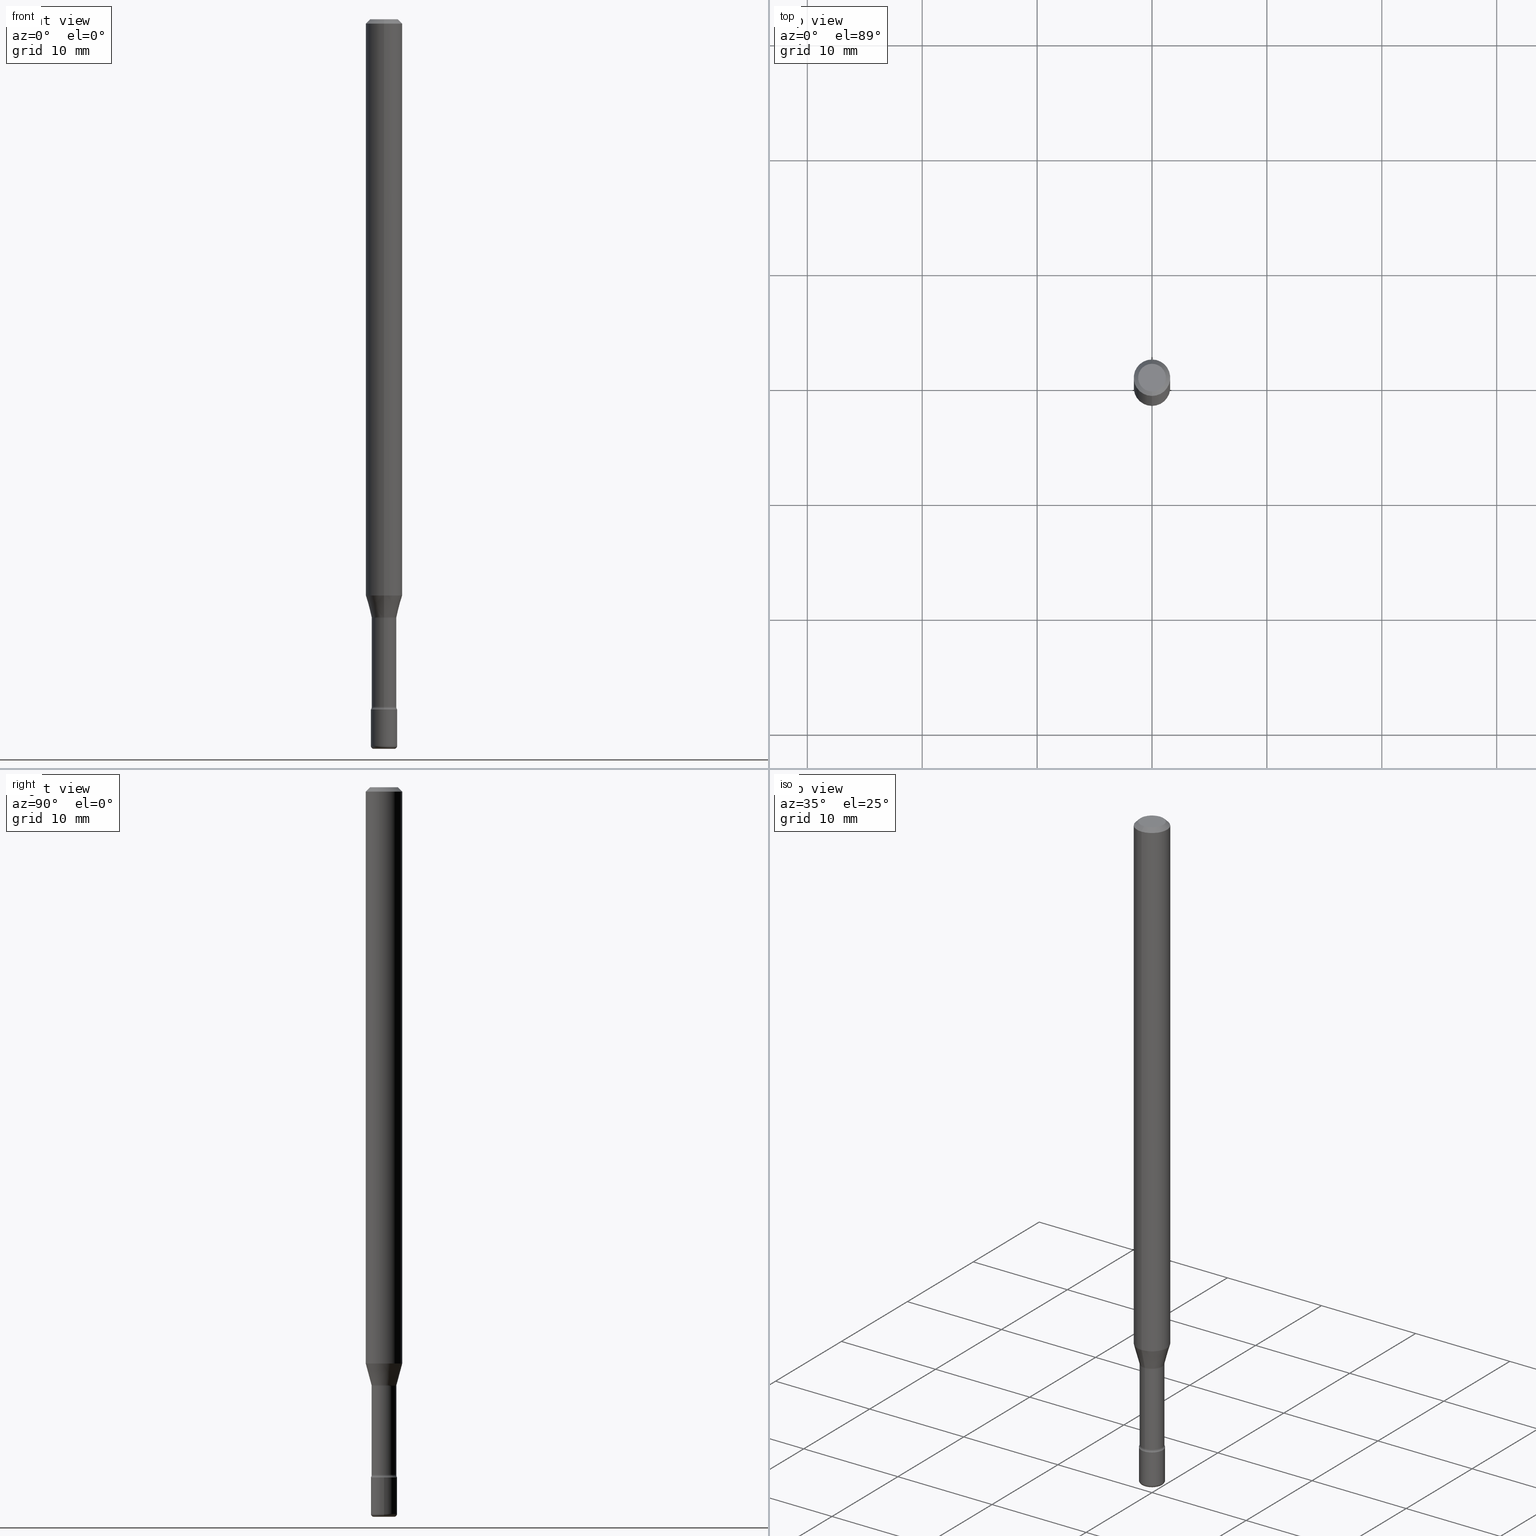
[diagram: canonical four-view strip — front | top / right | iso, engineering-drawing reading convention]
A machine part, canonical four-view strip (front | top / right | iso — engineering-drawing reading convention). The complete STEP part file that produces these views, byte-faithful:
ISO-10303-21;
HEADER;
FILE_DESCRIPTION (( 'STEP AP203' ),
    '1' );
FILE_NAME ('08953.STEP',
    '2024-03-06T20:12:15',
    ( '' ),
    ( '' ),
    'SwSTEP 2.0',
    'SolidWorks 2023',
    '' );
FILE_SCHEMA (( 'CONFIG_CONTROL_DESIGN' ));
ENDSEC;

DATA;
#1 = AXIS2_PLACEMENT_3D ( 'NONE', #12, #15, #185 ) ;
#2 = AXIS2_PLACEMENT_3D ( 'NONE', #472, #517, #420 ) ;
#3 = ORIENTED_EDGE ( 'NONE', *, *, #67, .T. ) ;
#4 = APPLICATION_PROTOCOL_DEFINITION ( 'international standard', 'config_control_design', 1994, #330 ) ;
#5 = DIRECTION ( 'NONE',  ( 6.982962677686265922E-15, 1.000000000000000000, -3.483106191921935554E-15 ) ) ;
#6 = EDGE_CURVE ( 'NONE', #409, #531, #223, .T. ) ;
#7 = FACE_OUTER_BOUND ( 'NONE', #508, .T. ) ;
#8 = DIRECTION ( 'NONE',  ( -2.445355446703953584E-29, 3.491643676072220337E-15, 1.000000000000000000 ) ) ;
#9 = AXIS2_PLACEMENT_3D ( 'NONE', #540, #96, #5 ) ;
#10 = CIRCLE ( 'NONE', #132, 0.04749999999999998668 ) ;
#11 = ADVANCED_FACE ( 'NONE', ( #7 ), #492, .T. ) ;
#12 = CARTESIAN_POINT ( 'NONE',  ( 5.783533726627847872E-29, -8.257353366364040046E-15, -2.365000000000000213 ) ) ;
#13 = DIRECTION ( 'NONE',  ( -6.982962677686265922E-15, -1.000000000000000000, 3.491643676072219943E-15 ) ) ;
#14 = CARTESIAN_POINT ( 'NONE',  ( 3.041912507176719677E-16, 0.04281111260565682169, -2.048092501787273534 ) ) ;
#15 = DIRECTION ( 'NONE',  ( -2.438088387897960049E-29, 3.491481338843145188E-15, 1.000000000000000000 ) ) ;
#16 = FACE_OUTER_BOUND ( 'NONE', #100, .T. ) ;
#17 = ORIENTED_EDGE ( 'NONE', *, *, #67, .F. ) ;
#18 = ORIENTED_EDGE ( 'NONE', *, *, #289, .T. ) ;
#19 = EDGE_LOOP ( 'NONE', ( #417, #306, #169, #86 ) ) ;
#20 = VECTOR ( 'NONE', #346, 39.37007874015748143 ) ;
#21 = DIRECTION ( 'NONE',  ( -6.982962677686268288E-15, -1.000000000000000000, 0.000000000000000000 ) ) ;
#22 = CYLINDRICAL_SURFACE ( 'NONE', #56, 0.06250000000000000000 ) ;
#23 = EDGE_LOOP ( 'NONE', ( #191, #433, #94, #556 ) ) ;
#24 = DIRECTION ( 'NONE',  ( -6.982962677686266711E-15, -1.000000000000000000, 6.381165607227959654E-15 ) ) ;
#25 = DIRECTION ( 'NONE',  ( -2.445355446703953584E-29, 3.491643676072220337E-15, 1.000000000000000000 ) ) ;
#26 = CARTESIAN_POINT ( 'NONE',  ( 5.008314154599036153E-29, -7.151209231876466431E-15, -2.048092501787273534 ) ) ;
#27 = ADVANCED_FACE ( 'NONE', ( #398 ), #226, .T. ) ;
#28 = FACE_OUTER_BOUND ( 'NONE', #334, .T. ) ;
#29 = DIRECTION ( 'NONE',  ( -2.445355446703953584E-29, 3.491643676072220337E-15, 1.000000000000000000 ) ) ;
#30 = FACE_OUTER_BOUND ( 'NONE', #381, .T. ) ;
#31 = ORIENTED_EDGE ( 'NONE', *, *, #50, .F. ) ;
#32 = APPROVAL_PERSON_ORGANIZATION ( #565, #82, #516 ) ;
#33 = FACE_OUTER_BOUND ( 'NONE', #231, .T. ) ;
#34 = CIRCLE ( 'NONE', #171, 0.04499999999999999833 ) ;
#35 = AXIS2_PLACEMENT_3D ( 'NONE', #376, #506, #291 ) ;
#36 = CARTESIAN_POINT ( 'NONE',  ( 5.008314154599036153E-29, -7.151209231876466431E-15, -2.048092501787273534 ) ) ;
#37 = DIRECTION ( 'NONE',  ( 1.000000000000000000, -6.982962677686269077E-15, 0.000000000000000000 ) ) ;
#38 = CARTESIAN_POINT ( 'NONE',  ( -0.03499999999999999639, -8.445098576203397219E-15, -2.489999999999999769 ) ) ;
#39 = ADVANCED_FACE ( 'NONE', ( #315 ), #512, .F. ) ;
#40 = VECTOR ( 'NONE', #274, 39.37007874015748143 ) ;
#41 = SECURITY_CLASSIFICATION_LEVEL ( 'unclassified' ) ;
#42 = ORIENTED_EDGE ( 'NONE', *, *, #233, .F. ) ;
#43 = COORDINATED_UNIVERSAL_TIME_OFFSET ( 5, 0, .BEHIND. ) ;
#44 = ORIENTED_EDGE ( 'NONE', *, *, #428, .F. ) ;
#45 = AXIS2_PLACEMENT_3D ( 'NONE', #319, #457, #270 ) ;
#46 = VERTEX_POINT ( 'NONE', #526 ) ;
#47 = CLOSED_SHELL ( 'NONE', ( #473, #278, #27, #83, #481, #91 ) ) ;
#48 = EDGE_CURVE ( 'NONE', #352, #113, #236, .T. ) ;
#49 = CARTESIAN_POINT ( 'NONE',  ( 0.03499999999999999639, -8.938192227438451682E-15, -2.489999999999999769 ) ) ;
#50 = EDGE_CURVE ( 'NONE', #448, #266, #225, .T. ) ;
#51 = ORIENTED_EDGE ( 'NONE', *, *, #48, .T. ) ;
#52 = VERTEX_POINT ( 'NONE', #263 ) ;
#53 = AXIS2_PLACEMENT_3D ( 'NONE', #280, #101, #501 ) ;
#54 = ORIENTED_EDGE ( 'NONE', *, *, #570, .F. ) ;
#55 = DIRECTION ( 'NONE',  ( 1.000000000000000000, -7.105427357601001070E-15, 4.926317496599761806E-29 ) ) ;
#56 = AXIS2_PLACEMENT_3D ( 'NONE', #186, #313, #497 ) ;
#57 = DIRECTION ( 'NONE',  ( 1.000000000000000000, -6.982962677686278543E-15, 0.000000000000000000 ) ) ;
#58 = CYLINDRICAL_SURFACE ( 'NONE', #53, 0.04229999999999999732 ) ;
#59 = EDGE_CURVE ( 'NONE', #426, #404, #34, .T. ) ;
#60 = VERTEX_POINT ( 'NONE', #469 ) ;
#61 = CARTESIAN_POINT ( 'NONE',  ( -4.364351673553916201E-16, -0.06250000000000000000, 6.963011286457598096E-16 ) ) ;
#62 = DIRECTION ( 'NONE',  ( -6.982962677686265922E-15, -1.000000000000000000, 3.483106191921935554E-15 ) ) ;
#63 = FACE_OUTER_BOUND ( 'NONE', #402, .T. ) ;
#64 = SECURITY_CLASSIFICATION ( '', '', #41 ) ;
#65 = VECTOR ( 'NONE', #29, 39.37007874015748143 ) ;
#66 = FACE_OUTER_BOUND ( 'NONE', #502, .T. ) ;
#67 = EDGE_CURVE ( 'NONE', #354, #256, #150, .T. ) ;
#68 = DIRECTION ( 'NONE',  ( -2.445468806185136877E-29, 3.491481338843145188E-15, 1.000000000000000000 ) ) ;
#69 = ORIENTED_EDGE ( 'NONE', *, *, #183, .T. ) ;
#70 = EDGE_CURVE ( 'NONE', #253, #354, #308, .T. ) ;
#71 = DIRECTION ( 'NONE',  ( -2.445355446703953584E-29, 3.491643676072220337E-15, 1.000000000000000000 ) ) ;
#72 = EDGE_LOOP ( 'NONE', ( #439, #201, #260, #17 ) ) ;
#73 = CARTESIAN_POINT ( 'NONE',  ( -2.953793212660789115E-16, -0.04230000000000716520, -2.051974787463811012 ) ) ;
#74 = CIRCLE ( 'NONE', #276, 0.04499999999999999833 ) ;
#75 = CARTESIAN_POINT ( 'NONE',  ( 5.008314154599036153E-29, -7.151209231876466431E-15, -2.048092501787273534 ) ) ;
#76 = EDGE_CURVE ( 'NONE', #46, #198, #331, .T. ) ;
#77 = AXIS2_PLACEMENT_3D ( 'NONE', #323, #510, #211 ) ;
#78 = AXIS2_PLACEMENT_3D ( 'NONE', #399, #200, #368 ) ;
#79 = CARTESIAN_POINT ( 'NONE',  ( 4.440892098500625669E-16, 0.06250000000000000000, 2.598456691367323168E-16 ) ) ;
#80 = SHAPE_DEFINITION_REPRESENTATION ( #546, #128 ) ;
#81 = DIRECTION ( 'NONE',  ( -6.982962677686265133E-15, -1.000000000000000000, 3.491643676072220731E-15 ) ) ;
#82 = APPROVAL ( #345, 'UNSPECIFIED' ) ;
#83 = ADVANCED_FACE ( 'NONE', ( #557 ), #496, .T. ) ;
#84 = PERSON_AND_ORGANIZATION_ROLE ( 'design_owner' ) ;
#85 = PERSON_AND_ORGANIZATION ( #463, #452 ) ;
#86 = ORIENTED_EDGE ( 'NONE', *, *, #215, .F. ) ;
#87 = CIRCLE ( 'NONE', #187, 0.04499999999999999833 ) ;
#88 = CARTESIAN_POINT ( 'NONE',  ( -2.953793212661290535E-16, -0.04229999999999999732, 6.257699263891009512E-16 ) ) ;
#89 = CIRCLE ( 'NONE', #251, 0.04499999999999999833 ) ;
#90 = PERSON_AND_ORGANIZATION_ROLE ( 'design_supplier' ) ;
#91 = ADVANCED_FACE ( 'NONE', ( #335 ), #382, .T. ) ;
#92 = DIRECTION ( 'NONE',  ( 7.105427357601001859E-15, 1.000000000000000000, 0.000000000000000000 ) ) ;
#93 = CALENDAR_DATE ( 2024, 6, 3 ) ;
#94 = ORIENTED_EDGE ( 'NONE', *, *, #48, .F. ) ;
#95 = APPROVAL_PERSON_ORGANIZATION ( #136, #301, #561 ) ;
#96 = DIRECTION ( 'NONE',  ( 2.445355446703953584E-29, -3.491643676072220337E-15, -1.000000000000000000 ) ) ;
#97 = LINE ( 'NONE', #309, #393 ) ;
#98 = CARTESIAN_POINT ( 'NONE',  ( 5.783265631454850293E-29, -8.257737293910801257E-15, -2.365000000000000213 ) ) ;
#99 = LENGTH_MEASURE_WITH_UNIT ( LENGTH_MEASURE( 0.02539999999999999897 ), #514 );
#100 = EDGE_LOOP ( 'NONE', ( #44, #184, #559, #373 ) ) ;
#101 = DIRECTION ( 'NONE',  ( -2.445355446703953584E-29, 3.491643676072220337E-15, 1.000000000000000000 ) ) ;
#102 = EDGE_CURVE ( 'NONE', #266, #113, #551, .T. ) ;
#103 = CC_DESIGN_DATE_AND_TIME_ASSIGNMENT ( #252, #213, ( #523 ) ) ;
#104 = CARTESIAN_POINT ( 'NONE',  ( 6.089217327400989947E-29, -8.693788533719431716E-15, -2.489999999999999769 ) ) ;
#105 = CARTESIAN_POINT ( 'NONE',  ( -4.364351673553912750E-16, -0.06250000000000005551, -0.01499999999999981036 ) ) ;
#106 = CIRCLE ( 'NONE', #262, 0.04749999999999998668 ) ;
#107 = EDGE_CURVE ( 'NONE', #431, #364, #87, .T. ) ;
#108 = EDGE_LOOP ( 'NONE', ( #361, #529 ) ) ;
#109 = LINE ( 'NONE', #491, #518 ) ;
#110 = ORIENTED_EDGE ( 'NONE', *, *, #233, .T. ) ;
#111 = DIRECTION ( 'NONE',  ( -2.445355446703953584E-29, 3.491643676072220337E-15, 1.000000000000000000 ) ) ;
#112 = DIRECTION ( 'NONE',  ( 1.000000000000000000, -6.982962677686245411E-15, 0.000000000000000000 ) ) ;
#113 = VERTEX_POINT ( 'NONE', #166 ) ;
#114 = EDGE_CURVE ( 'NONE', #256, #531, #395, .T. ) ;
#115 = DIRECTION ( 'NONE',  ( -2.445355446703953584E-29, 3.491643676072220337E-15, 1.000000000000000000 ) ) ;
#116 = DIRECTION ( 'NONE',  ( -6.982962677686266711E-15, -1.000000000000000000, 6.458269488567998169E-15 ) ) ;
#117 = ORIENTED_EDGE ( 'NONE', *, *, #107, .T. ) ;
#118 = CLOSED_SHELL ( 'NONE', ( #39, #347, #362, #11, #356, #159, #441, #321, #445, #188, #259, #370, #151, #552 ) ) ;
#119 = CARTESIAN_POINT ( 'NONE',  ( 6.616964112604452341E-46, -9.463647414913262019E-32, -2.708147617875838145E-17 ) ) ;
#120 = DESIGN_CONTEXT ( 'detailed design', #122, 'design' ) ;
#121 = ORIENTED_EDGE ( 'NONE', *, *, #451, .F. ) ;
#122 = APPLICATION_CONTEXT ( 'configuration controlled 3d designs of mechanical parts and assemblies' ) ;
#123 = DIRECTION ( 'NONE',  ( -2.445468806185136597E-29, 3.491481338843145583E-15, 1.000000000000000000 ) ) ;
#124 = FACE_OUTER_BOUND ( 'NONE', #181, .T. ) ;
#125 = CC_DESIGN_PERSON_AND_ORGANIZATION_ASSIGNMENT ( #175, #84, ( #172 ) ) ;
#126 = PERSON_AND_ORGANIZATION ( #463, #452 ) ;
#127 = PERSON_AND_ORGANIZATION ( #463, #452 ) ;
#128 = ADVANCED_BREP_SHAPE_REPRESENTATION ( '08953', ( #547, #174, #401 ), #351 ) ;
#129 = CALENDAR_DATE ( 2024, 6, 3 ) ;
#130 = TOROIDAL_SURFACE ( 'NONE', #2, 0.03499999999999999639, 0.01000000000000008694 ) ;
#131 = APPROVAL_PERSON_ORGANIZATION ( #386, #444, #179 ) ;
#132 = AXIS2_PLACEMENT_3D ( 'NONE', #281, #434, #81 ) ;
#133 = CALENDAR_DATE ( 2024, 6, 3 ) ;
#134 = ORIENTED_EDGE ( 'NONE', *, *, #102, .F. ) ;
#135 = CARTESIAN_POINT ( 'NONE',  ( -0.03499999999999999639, -8.427028846109608002E-15, -2.500000000000000000 ) ) ;
#136 = PERSON_AND_ORGANIZATION ( #463, #452 ) ;
#137 = ORIENTED_EDGE ( 'NONE', *, *, #524, .F. ) ;
#138 =( NAMED_UNIT ( * ) SI_UNIT ( $, .STERADIAN. ) SOLID_ANGLE_UNIT ( ) );
#139 = EDGE_CURVE ( 'NONE', #266, #448, #435, .T. ) ;
#140 = CC_DESIGN_PERSON_AND_ORGANIZATION_ASSIGNMENT ( #85, #90, ( #394 ) ) ;
#141 = ORIENTED_EDGE ( 'NONE', *, *, #183, .F. ) ;
#142 = CIRCLE ( 'NONE', #197, 0.06250000000000000000 ) ;
#143 = ORIENTED_EDGE ( 'NONE', *, *, #389, .T. ) ;
#144 = CARTESIAN_POINT ( 'NONE',  ( 6.089217327400989947E-29, -8.693788533719431716E-15, -2.489999999999999769 ) ) ;
#145 = ORIENTED_EDGE ( 'NONE', *, *, #139, .T. ) ;
#146 = FACE_OUTER_BOUND ( 'NONE', #406, .T. ) ;
#147 = CIRCLE ( 'NONE', #242, 0.01500000000000003587 ) ;
#148 = ORIENTED_EDGE ( 'NONE', *, *, #542, .T. ) ;
#149 = CARTESIAN_POINT ( 'NONE',  ( 4.828629612195885347E-29, -6.894643505607286140E-15, -1.974612573687109185 ) ) ;
#150 = CIRCLE ( 'NONE', #436, 0.01500000000000003587 ) ;
#151 = ADVANCED_FACE ( 'NONE', ( #124 ), #294, .T. ) ;
#152 = ORIENTED_EDGE ( 'NONE', *, *, #6, .T. ) ;
#153 = ORIENTED_EDGE ( 'NONE', *, *, #413, .F. ) ;
#154 = DIRECTION ( 'NONE',  ( -2.445355446703953584E-29, 3.491643676072220337E-15, 1.000000000000000000 ) ) ;
#155 = ORIENTED_EDGE ( 'NONE', *, *, #250, .T. ) ;
#156 = DIRECTION ( 'NONE',  ( 6.982962677686265922E-15, 1.000000000000000000, -3.491643676072220337E-15 ) ) ;
#157 = DIRECTION ( 'NONE',  ( -4.851104656540965064E-15, -0.7071067811865501263, -0.7071067811865449082 ) ) ;
#158 = DIRECTION ( 'NONE',  ( -6.982962677686265922E-15, -1.000000000000000000, 3.491643676072220337E-15 ) ) ;
#159 = ADVANCED_FACE ( 'NONE', ( #66 ), #366, .T. ) ;
#160 = DIRECTION ( 'NONE',  ( -6.982962677686265922E-15, -1.000000000000000000, 4.370956789862821150E-15 ) ) ;
#161 = AXIS2_PLACEMENT_3D ( 'NONE', #149, #275, #287 ) ;
#162 = AXIS2_PLACEMENT_3D ( 'NONE', #316, #544, #495 ) ;
#163 = DIRECTION ( 'NONE',  ( -1.000000000000000000, 7.105427357600962416E-15, 0.000000000000000000 ) ) ;
#164 = ORIENTED_EDGE ( 'NONE', *, *, #535, .T. ) ;
#165 = CC_DESIGN_PERSON_AND_ORGANIZATION_ASSIGNMENT ( #127, #297, ( #523 ) ) ;
#166 = CARTESIAN_POINT ( 'NONE',  ( -0.04500000000000004691, -8.374044302627387137E-15, -2.489999999999999769 ) ) ;
#167 = CARTESIAN_POINT ( 'NONE',  ( 0.000000000000000000, 0.000000000000000000, 0.000000000000000000 ) ) ;
#168 = APPROVAL_DATE_TIME ( #305, #301 ) ;
#169 = ORIENTED_EDGE ( 'NONE', *, *, #451, .T. ) ;
#170 = DIRECTION ( 'NONE',  ( 1.000000000000000000, -6.982962677686266711E-15, 4.876176775795935793E-29 ) ) ;
#171 = AXIS2_PLACEMENT_3D ( 'NONE', #98, #210, #507 ) ;
#172 = PRODUCT ( '08953', '08953', '', ( #180 ) ) ;
#173 = APPROVAL_DATE_TIME ( #177, #82 ) ;
#174 = MANIFOLD_SOLID_BREP ( 'Body-Move/Copy2[2]', #118 ) ;
#175 = PERSON_AND_ORGANIZATION ( #463, #452 ) ;
#176 = DIRECTION ( 'NONE',  ( -2.445468806185136597E-29, 3.491481338843145583E-15, 1.000000000000000000 ) ) ;
#177 = DATE_AND_TIME ( #93, #349 ) ;
#178 = CIRCLE ( 'NONE', #220, 0.04229999999999999732 ) ;
#179 = APPROVAL_ROLE ( '' ) ;
#180 = MECHANICAL_CONTEXT ( 'NONE', #330, 'mechanical' ) ;
#181 = EDGE_LOOP ( 'NONE', ( #336, #155, #230, #54 ) ) ;
#182 = DIRECTION ( 'NONE',  ( 1.000000000000000000, 0.000000000000000000, 0.000000000000000000 ) ) ;
#183 = EDGE_CURVE ( 'NONE', #198, #290, #350, .T. ) ;
#184 = ORIENTED_EDGE ( 'NONE', *, *, #355, .F. ) ;
#185 = DIRECTION ( 'NONE',  ( 1.000000000000000000, -6.982962677686265922E-15, 4.876176775795935793E-29 ) ) ;
#186 = CARTESIAN_POINT ( 'NONE',  ( -1.169113584055446105E-44, 1.669184350826100908E-30, 4.780733988912460139E-16 ) ) ;
#187 = AXIS2_PLACEMENT_3D ( 'NONE', #246, #123, #429 ) ;
#188 = ADVANCED_FACE ( 'NONE', ( #234 ), #411, .F. ) ;
#189 = ORIENTED_EDGE ( 'NONE', *, *, #389, .F. ) ;
#190 = CARTESIAN_POINT ( 'NONE',  ( 3.197442310921029545E-16, 0.04499999999999174799, -2.365000000000000213 ) ) ;
#191 = ORIENTED_EDGE ( 'NONE', *, *, #50, .T. ) ;
#192 = DIRECTION ( 'NONE',  ( -2.445355446703953584E-29, 3.491643676072220337E-15, 1.000000000000000000 ) ) ;
#193 = ORIENTED_EDGE ( 'NONE', *, *, #107, .F. ) ;
#194 = CIRCLE ( 'NONE', #553, 0.04500000000000000527 ) ;
#195 = DIRECTION ( 'NONE',  ( -2.445468806185136597E-29, 3.491481338843145583E-15, 1.000000000000000000 ) ) ;
#196 = CYLINDRICAL_SURFACE ( 'NONE', #511, 0.06250000000000000000 ) ;
#197 = AXIS2_PLACEMENT_3D ( 'NONE', #202, #549, #160 ) ;
#198 = VERTEX_POINT ( 'NONE', #286 ) ;
#199 = CARTESIAN_POINT ( 'NONE',  ( 3.316907271900975110E-16, 0.04749999999999998668, 5.964288674281338024E-17 ) ) ;
#200 = DIRECTION ( 'NONE',  ( -2.445355446703953584E-29, 3.491643676072220337E-15, 1.000000000000000000 ) ) ;
#201 = ORIENTED_EDGE ( 'NONE', *, *, #524, .T. ) ;
#202 = CARTESIAN_POINT ( 'NONE',  ( 4.828629612195885347E-29, -6.894643505607286140E-15, -1.974612573687109185 ) ) ;
#203 = FACE_OUTER_BOUND ( 'NONE', #19, .T. ) ;
#204 = ORIENTED_EDGE ( 'NONE', *, *, #542, .F. ) ;
#205 = DIRECTION ( 'NONE',  ( -2.445355446703953584E-29, 3.491643676072220337E-15, 1.000000000000000000 ) ) ;
#206 = TOROIDAL_SURFACE ( 'NONE', #45, 0.05730000000000001759, 0.01500000000000001506 ) ;
#207 = LOCAL_TIME ( 15, 12, 15.00000000000000000, #298 ) ;
#208 = AXIS2_PLACEMENT_3D ( 'NONE', #104, #195, #454 ) ;
#209 = AXIS2_PLACEMENT_3D ( 'NONE', #532, #55, #403 ) ;
#210 = DIRECTION ( 'NONE',  ( -2.445355446703953584E-29, 3.491643676072220337E-15, 1.000000000000000000 ) ) ;
#211 = DIRECTION ( 'NONE',  ( 1.000000000000000000, -6.982962677686278543E-15, 0.000000000000000000 ) ) ;
#212 = CYLINDRICAL_SURFACE ( 'NONE', #380, 0.04499999999999999833 ) ;
#213 = DATE_TIME_ROLE ( 'creation_date' ) ;
#214 = CARTESIAN_POINT ( 'NONE',  ( 5.018040333821126293E-29, -7.164431678206526346E-15, -2.051974787463811456 ) ) ;
#215 = EDGE_CURVE ( 'NONE', #46, #318, #142, .T. ) ;
#216 = CC_DESIGN_APPROVAL ( #82, ( #523 ) ) ;
#217 = TOROIDAL_SURFACE ( 'NONE', #162, 0.03499999999999999639, 0.01000000000000008694 ) ;
#218 = EDGE_LOOP ( 'NONE', ( #134, #145, #279, #485 ) ) ;
#219 = VECTOR ( 'NONE', #68, 39.37007874015748143 ) ;
#220 = AXIS2_PLACEMENT_3D ( 'NONE', #418, #205, #292 ) ;
#221 = ORIENTED_EDGE ( 'NONE', *, *, #483, .T. ) ;
#222 = ORIENTED_EDGE ( 'NONE', *, *, #114, .T. ) ;
#223 = LINE ( 'NONE', #407, #40 ) ;
#224 = VECTOR ( 'NONE', #408, 39.37007874015748143 ) ;
#225 = CIRCLE ( 'NONE', #423, 0.03499999999999999639 ) ;
#226 = PLANE ( 'NONE',  #1 ) ;
#227 = CONICAL_SURFACE ( 'NONE', #365, 0.04281111260566397569, 0.2617993877991506846 ) ;
#228 = ORIENTED_EDGE ( 'NONE', *, *, #383, .F. ) ;
#229 = DIRECTION ( 'NONE',  ( -2.445355446703953584E-29, 3.491643676072220337E-15, 1.000000000000000000 ) ) ;
#230 = ORIENTED_EDGE ( 'NONE', *, *, #258, .T. ) ;
#231 = EDGE_LOOP ( 'NONE', ( #51, #325, #193, #204 ) ) ;
#232 = DIRECTION ( 'NONE',  ( -2.445355446703953584E-29, 3.491643676072220337E-15, 1.000000000000000000 ) ) ;
#233 = EDGE_CURVE ( 'NONE', #52, #60, #106, .T. ) ;
#234 = FACE_OUTER_BOUND ( 'NONE', #446, .T. ) ;
#235 = DIRECTION ( 'NONE',  ( -6.982962677686265922E-15, -1.000000000000000000, 3.491643676072220337E-15 ) ) ;
#236 = CIRCLE ( 'NONE', #208, 0.04500000000000000527 ) ;
#237 = CARTESIAN_POINT ( 'NONE',  ( 0.000000000000000000, 0.000000000000000000, 0.000000000000000000 ) ) ;
#238 = ORIENTED_EDGE ( 'NONE', *, *, #293, .T. ) ;
#239 = DIRECTION ( 'NONE',  ( -6.982962677686265133E-15, -1.000000000000000000, 3.491643676072220731E-15 ) ) ;
#240 = ORIENTED_EDGE ( 'NONE', *, *, #215, .T. ) ;
#241 = DIRECTION ( 'NONE',  ( -2.445468806185136597E-29, 3.491481338843145583E-15, 1.000000000000000000 ) ) ;
#242 = AXIS2_PLACEMENT_3D ( 'NONE', #268, #300, #92 ) ;
#243 = ORIENTED_EDGE ( 'NONE', *, *, #293, .F. ) ;
#244 = LINE ( 'NONE', #342, #550 ) ;
#245 = CONICAL_SURFACE ( 'NONE', #35, 0.06250000000000000000, 0.7853981633974485010 ) ;
#246 = CARTESIAN_POINT ( 'NONE',  ( 5.783533726627847872E-29, -8.257353366364040046E-15, -2.365000000000000213 ) ) ;
#247 = COORDINATED_UNIVERSAL_TIME_OFFSET ( 5, 0, .BEHIND. ) ;
#248 = DIRECTION ( 'NONE',  ( -6.982962677686266711E-15, -1.000000000000000000, 6.381165607227959654E-15 ) ) ;
#249 = LINE ( 'NONE', #88, #20 ) ;
#250 = EDGE_CURVE ( 'NONE', #409, #499, #178, .T. ) ;
#251 = AXIS2_PLACEMENT_3D ( 'NONE', #509, #176, #37 ) ;
#252 = DATE_AND_TIME ( #129, #527 ) ;
#253 = VERTEX_POINT ( 'NONE', #467 ) ;
#254 =( NAMED_UNIT ( * ) PLANE_ANGLE_UNIT ( ) SI_UNIT ( $, .RADIAN. ) );
#255 = CARTESIAN_POINT ( 'NONE',  ( 3.005595772265800451E-16, 0.04229999999999283639, -2.051974787463811456 ) ) ;
#256 = VERTEX_POINT ( 'NONE', #73 ) ;
#257 = CARTESIAN_POINT ( 'NONE',  ( 0.000000000000000000, 0.000000000000000000, 0.000000000000000000 ) ) ;
#258 = EDGE_CURVE ( 'NONE', #499, #256, #249, .T. ) ;
#259 = ADVANCED_FACE ( 'NONE', ( #479 ), #369, .F. ) ;
#260 = ORIENTED_EDGE ( 'NONE', *, *, #570, .T. ) ;
#261 = AXIS2_PLACEMENT_3D ( 'NONE', #534, #229, #116 ) ;
#262 = AXIS2_PLACEMENT_3D ( 'NONE', #119, #71, #239 ) ;
#263 = CARTESIAN_POINT ( 'NONE',  ( 3.840629472727447874E-16, 0.04749999999999998668, -1.929345507921888190E-16 ) ) ;
#264 = DIRECTION ( 'NONE',  ( -1.807323732225332900E-15, -0.2588190451025185745, 0.9659258262890689783 ) ) ;
#265 = ORIENTED_EDGE ( 'NONE', *, *, #258, .F. ) ;
#266 = VERTEX_POINT ( 'NONE', #135 ) ;
#267 =( CONVERSION_BASED_UNIT ( 'INCH', #99 ) LENGTH_UNIT ( ) NAMED_UNIT ( #432 ) );
#268 = CARTESIAN_POINT ( 'NONE',  ( 4.071409875905875748E-16, 0.05729999999999284971, -2.051974787463811456 ) ) ;
#269 = ORIENTED_EDGE ( 'NONE', *, *, #139, .F. ) ;
#270 = DIRECTION ( 'NONE',  ( -6.982962677686265922E-15, -1.000000000000000000, 3.491643676072220337E-15 ) ) ;
#271 = EDGE_CURVE ( 'NONE', #499, #426, #410, .T. ) ;
#272 = AXIS2_PLACEMENT_3D ( 'NONE', #214, #425, #562 ) ;
#273 = AXIS2_PLACEMENT_3D ( 'NONE', #199, #371, #156 ) ;
#274 = DIRECTION ( 'NONE',  ( -2.445355446703953584E-29, 3.491643676072220337E-15, 1.000000000000000000 ) ) ;
#275 = DIRECTION ( 'NONE',  ( -2.445355446703953584E-29, 3.491643676072220337E-15, 1.000000000000000000 ) ) ;
#276 = AXIS2_PLACEMENT_3D ( 'NONE', #372, #8, #358 ) ;
#277 = EDGE_LOOP ( 'NONE', ( #419, #505, #538, #488 ) ) ;
#278 = ADVANCED_FACE ( 'NONE', ( #528 ), #217, .T. ) ;
#279 = ORIENTED_EDGE ( 'NONE', *, *, #447, .T. ) ;
#280 = CARTESIAN_POINT ( 'NONE',  ( -1.169113584055446105E-44, 1.669184350826100908E-30, 4.780733988912460139E-16 ) ) ;
#281 = CARTESIAN_POINT ( 'NONE',  ( 6.616964112604452341E-46, -9.463647414913262019E-32, -2.708147617875838145E-17 ) ) ;
#282 = ORIENTED_EDGE ( 'NONE', *, *, #355, .T. ) ;
#283 = CARTESIAN_POINT ( 'NONE',  ( 5.008314154599036153E-29, -7.151209231876466431E-15, -2.048092501787273534 ) ) ;
#284 = CARTESIAN_POINT ( 'NONE',  ( 0.04500000000000004691, -9.008021854215313402E-15, -2.489999999999999769 ) ) ;
#285 = DIRECTION ( 'NONE',  ( -2.445355446703953584E-29, 3.491643676072220337E-15, 1.000000000000000000 ) ) ;
#286 = CARTESIAN_POINT ( 'NONE',  ( 4.440892098501112297E-16, 0.06249999999999995837, -0.01500000000000024578 ) ) ;
#287 = DIRECTION ( 'NONE',  ( -6.982962677686265922E-15, -1.000000000000000000, 4.370956789862821150E-15 ) ) ;
#288 = DIRECTION ( 'NONE',  ( -2.445355446703953584E-29, 3.491643676072220337E-15, 1.000000000000000000 ) ) ;
#289 = EDGE_CURVE ( 'NONE', #60, #290, #109, .T. ) ;
#290 = VERTEX_POINT ( 'NONE', #105 ) ;
#291 = DIRECTION ( 'NONE',  ( 6.982962677686265922E-15, 1.000000000000000000, -3.483106191921935554E-15 ) ) ;
#292 = DIRECTION ( 'NONE',  ( -6.982962677686266711E-15, -1.000000000000000000, 6.458269488567998169E-15 ) ) ;
#293 = EDGE_CURVE ( 'NONE', #318, #46, #421, .T. ) ;
#294 = CYLINDRICAL_SURFACE ( 'NONE', #470, 0.04229999999999999732 ) ;
#295 = FACE_OUTER_BOUND ( 'NONE', #218, .T. ) ;
#296 = PERSON_AND_ORGANIZATION ( #463, #452 ) ;
#297 = PERSON_AND_ORGANIZATION_ROLE ( 'creator' ) ;
#298 = COORDINATED_UNIVERSAL_TIME_OFFSET ( 5, 0, .BEHIND. ) ;
#299 = VECTOR ( 'NONE', #536, 39.37007874015748143 ) ;
#300 = DIRECTION ( 'NONE',  ( 1.000000000000000000, -7.105427357601001070E-15, 4.926317496599761806E-29 ) ) ;
#301 = APPROVAL ( #438, 'UNSPECIFIED' ) ;
#302 = DATE_AND_TIME ( #133, #307 ) ;
#303 = EDGE_CURVE ( 'NONE', #113, #352, #194, .T. ) ;
#304 = DIRECTION ( 'NONE',  ( -6.982962677686263555E-15, -1.000000000000000000, 0.000000000000000000 ) ) ;
#305 = DATE_AND_TIME ( #391, #339 ) ;
#306 = ORIENTED_EDGE ( 'NONE', *, *, #70, .T. ) ;
#307 = LOCAL_TIME ( 15, 12, 15.00000000000000000, #348 ) ;
#308 = CIRCLE ( 'NONE', #564, 0.04281111260566397569 ) ;
#309 = CARTESIAN_POINT ( 'NONE',  ( -2.989484015155254514E-16, -0.04281111260567112969, -2.048092501787273090 ) ) ;
#310 = CARTESIAN_POINT ( 'NONE',  ( 5.018040333821126293E-29, -7.164431678206526346E-15, -2.051974787463811456 ) ) ;
#311 = CARTESIAN_POINT ( 'NONE',  ( -4.001237614313655264E-16, -0.05730000000000824711, -2.356414547187247077 ) ) ;
#312 = CARTESIAN_POINT ( 'NONE',  ( 6.113672015462842613E-29, -8.728703347107864943E-15, -2.500000000000000000 ) ) ;
#313 = DIRECTION ( 'NONE',  ( -2.445355446703953584E-29, 3.491643676072220337E-15, 1.000000000000000000 ) ) ;
#314 = DIRECTION ( 'NONE',  ( -1.000000000000000000, 6.982962677686265922E-15, -4.883557194083112340E-29 ) ) ;
#315 = FACE_OUTER_BOUND ( 'NONE', #72, .T. ) ;
#316 = CARTESIAN_POINT ( 'NONE',  ( 6.089217327400989947E-29, -8.693788533719431716E-15, -2.489999999999999769 ) ) ;
#317 = AXIS2_PLACEMENT_3D ( 'NONE', #465, #337, #415 ) ;
#318 = VERTEX_POINT ( 'NONE', #405 ) ;
#319 = CARTESIAN_POINT ( 'NONE',  ( 5.762538269587286723E-29, -8.227377418082795508E-15, -2.356414547187247521 ) ) ;
#320 = AXIS2_PLACEMENT_3D ( 'NONE', #324, #192, #235 ) ;
#321 = ADVANCED_FACE ( 'NONE', ( #63 ), #196, .T. ) ;
#322 = ORIENTED_EDGE ( 'NONE', *, *, #76, .F. ) ;
#323 = CARTESIAN_POINT ( 'NONE',  ( 6.113672015462842613E-29, -8.728703347107864943E-15, -2.500000000000000000 ) ) ;
#324 = CARTESIAN_POINT ( 'NONE',  ( 5.762538269587286723E-29, -8.227377418082795508E-15, -2.356414547187247521 ) ) ;
#325 = ORIENTED_EDGE ( 'NONE', *, *, #478, .T. ) ;
#326 = DIRECTION ( 'NONE',  ( 1.000000000000000000, -6.982962677686266711E-15, 4.876176775795935793E-29 ) ) ;
#327 = CARTESIAN_POINT ( 'NONE',  ( -1.169113584055446105E-44, 1.669184350826100908E-30, 4.780733988912460139E-16 ) ) ;
#328 = CARTESIAN_POINT ( 'NONE',  ( 0.04499999999999999833, -3.142333204958819823E-16, 2.194279549108170967E-30 ) ) ;
#329 = ORIENTED_EDGE ( 'NONE', *, *, #475, .T. ) ;
#330 = APPLICATION_CONTEXT ( 'configuration controlled 3d designs of mechanical parts and assemblies' ) ;
#331 = LINE ( 'NONE', #79, #65 ) ;
#332 = AXIS2_PLACEMENT_3D ( 'NONE', #38, #504, #163 ) ;
#333 = CIRCLE ( 'NONE', #442, 0.04229999999999999732 ) ;
#334 = EDGE_LOOP ( 'NONE', ( #392, #42, #143, #69 ) ) ;
#335 = FACE_OUTER_BOUND ( 'NONE', #466, .T. ) ;
#336 = ORIENTED_EDGE ( 'NONE', *, *, #6, .F. ) ;
#337 = DIRECTION ( 'NONE',  ( -2.445355446703953584E-29, 3.491643676072220337E-15, 1.000000000000000000 ) ) ;
#338 = DIRECTION ( 'NONE',  ( -2.445355446703953584E-29, 3.491643676072220337E-15, 1.000000000000000000 ) ) ;
#339 = LOCAL_TIME ( 15, 12, 15.00000000000000000, #43 ) ;
#340 = CC_DESIGN_APPROVAL ( #301, ( #64 ) ) ;
#341 = AXIS2_PLACEMENT_3D ( 'NONE', #515, #285, #158 ) ;
#342 = CARTESIAN_POINT ( 'NONE',  ( -0.04499999999999999833, 3.197442310920450718E-16, -2.213520790614707560E-30 ) ) ;
#343 = DATE_AND_TIME ( #437, #207 ) ;
#344 = DIRECTION ( 'NONE',  ( -2.445468806185136877E-29, 3.491481338843145188E-15, 1.000000000000000000 ) ) ;
#345 = APPROVAL_STATUS ( 'not_yet_approved' ) ;
#346 = DIRECTION ( 'NONE',  ( -2.445355446703953584E-29, 3.491643676072220337E-15, 1.000000000000000000 ) ) ;
#347 = ADVANCED_FACE ( 'NONE', ( #146 ), #58, .T. ) ;
#348 = COORDINATED_UNIVERSAL_TIME_OFFSET ( 5, 0, .BEHIND. ) ;
#349 = LOCAL_TIME ( 15, 12, 15.00000000000000000, #247 ) ;
#350 = CIRCLE ( 'NONE', #521, 0.06250000000000000000 ) ;
#351 =( GEOMETRIC_REPRESENTATION_CONTEXT ( 3 ) GLOBAL_UNCERTAINTY_ASSIGNED_CONTEXT ( ( #471 ) ) GLOBAL_UNIT_ASSIGNED_CONTEXT ( ( #267, #254, #138 ) ) REPRESENTATION_CONTEXT ( 'NONE', 'WORKASPACE' ) );
#352 = VERTEX_POINT ( 'NONE', #284 ) ;
#353 = DIRECTION ( 'NONE',  ( 1.000000000000000000, -6.982962677686273021E-15, 0.000000000000000000 ) ) ;
#354 = VERTEX_POINT ( 'NONE', #455 ) ;
#355 = EDGE_CURVE ( 'NONE', #499, #409, #571, .T. ) ;
#356 = ADVANCED_FACE ( 'NONE', ( #462 ), #22, .T. ) ;
#357 = DIRECTION ( 'NONE',  ( -2.445355446703953584E-29, 3.491643676072220337E-15, 1.000000000000000000 ) ) ;
#358 = DIRECTION ( 'NONE',  ( -6.982962677686265133E-15, -1.000000000000000000, 6.070773319253918263E-15 ) ) ;
#359 = EDGE_LOOP ( 'NONE', ( #117, #221 ) ) ;
#360 = CARTESIAN_POINT ( 'NONE',  ( 3.101519041593414751E-16, 0.04229999999999176780, -2.356414547187247521 ) ) ;
#361 = ORIENTED_EDGE ( 'NONE', *, *, #59, .F. ) ;
#362 = ADVANCED_FACE ( 'NONE', ( #541 ), #477, .F. ) ;
#363 = LINE ( 'NONE', #61, #377 ) ;
#364 = VERTEX_POINT ( 'NONE', #489 ) ;
#365 = AXIS2_PLACEMENT_3D ( 'NONE', #26, #375, #24 ) ;
#366 = CONICAL_SURFACE ( 'NONE', #443, 0.04281111260566397569, 0.2617993877991506846 ) ;
#367 = ORIENTED_EDGE ( 'NONE', *, *, #76, .T. ) ;
#368 = DIRECTION ( 'NONE',  ( -6.982962677686265922E-15, -1.000000000000000000, 3.483106191921935554E-15 ) ) ;
#369 = PLANE ( 'NONE',  #341 ) ;
#370 = ADVANCED_FACE ( 'NONE', ( #16 ), #206, .F. ) ;
#371 = DIRECTION ( 'NONE',  ( 2.445355446703953584E-29, -3.491643676072220337E-15, -1.000000000000000000 ) ) ;
#372 = CARTESIAN_POINT ( 'NONE',  ( 5.783265631454850293E-29, -8.257737293910801257E-15, -2.365000000000000213 ) ) ;
#373 = ORIENTED_EDGE ( 'NONE', *, *, #59, .T. ) ;
#374 = DIRECTION ( 'NONE',  ( -6.982962677686266711E-15, -1.000000000000000000, 3.491643676072218759E-15 ) ) ;
#375 = DIRECTION ( 'NONE',  ( -2.445355446703953584E-29, 3.491643676072220337E-15, 1.000000000000000000 ) ) ;
#376 = CARTESIAN_POINT ( 'NONE',  ( 3.668033170055936927E-31, -5.237465514108340440E-17, -0.01500000000000002720 ) ) ;
#377 = VECTOR ( 'NONE', #232, 39.37007874015748143 ) ;
#378 = CARTESIAN_POINT ( 'NONE',  ( 2.444036937190804124E-16, 0.03499999999999126726, -2.500000000000000000 ) ) ;
#379 = AXIS2_PLACEMENT_3D ( 'NONE', #237, #241, #326 ) ;
#380 = AXIS2_PLACEMENT_3D ( 'NONE', #167, #566, #170 ) ;
#381 = EDGE_LOOP ( 'NONE', ( #137, #397, #3, #222 ) ) ;
#382 = CYLINDRICAL_SURFACE ( 'NONE', #379, 0.04499999999999999833 ) ;
#383 = EDGE_CURVE ( 'NONE', #318, #290, #363, .T. ) ;
#384 = DIRECTION ( 'NONE',  ( -2.445355446703953584E-29, 3.491643676072220337E-15, 1.000000000000000000 ) ) ;
#385 = CARTESIAN_POINT ( 'NONE',  ( -1.169113584055446105E-44, 1.669184350826100908E-30, 4.780733988912460139E-16 ) ) ;
#386 = PERSON_AND_ORGANIZATION ( #463, #452 ) ;
#387 = CC_DESIGN_SECURITY_CLASSIFICATION ( #64, ( #394 ) ) ;
#388 = AXIS2_PLACEMENT_3D ( 'NONE', #378, #560, #543 ) ;
#389 = EDGE_CURVE ( 'NONE', #52, #198, #450, .T. ) ;
#390 = APPROVAL_STATUS ( 'not_yet_approved' ) ;
#391 = CALENDAR_DATE ( 2024, 6, 3 ) ;
#392 = ORIENTED_EDGE ( 'NONE', *, *, #289, .F. ) ;
#393 = VECTOR ( 'NONE', #264, 39.37007874015748143 ) ;
#394 = PRODUCT_DEFINITION_FORMATION_WITH_SPECIFIED_SOURCE ( 'ANY', '', #172, .NOT_KNOWN. ) ;
#395 = CIRCLE ( 'NONE', #317, 0.04229999999999999732 ) ;
#396 = DIRECTION ( 'NONE',  ( -6.982962677686266711E-15, -1.000000000000000000, 3.491481338843145583E-15 ) ) ;
#397 = ORIENTED_EDGE ( 'NONE', *, *, #475, .F. ) ;
#398 = FACE_OUTER_BOUND ( 'NONE', #359, .T. ) ;
#399 = CARTESIAN_POINT ( 'NONE',  ( 3.668033170055936927E-31, -5.237465514108340440E-17, -0.01500000000000002720 ) ) ;
#400 = CIRCLE ( 'NONE', #424, 0.04281111260566397569 ) ;
#401 = AXIS2_PLACEMENT_3D ( 'NONE', #257, #440, #182 ) ;
#402 = EDGE_LOOP ( 'NONE', ( #322, #240, #567, #141 ) ) ;
#403 = DIRECTION ( 'NONE',  ( 7.105427357600998703E-15, 1.000000000000000000, 0.000000000000000000 ) ) ;
#404 = VERTEX_POINT ( 'NONE', #190 ) ;
#405 = CARTESIAN_POINT ( 'NONE',  ( -4.364351673553431052E-16, -0.06250000000000686950, -1.974612573687108963 ) ) ;
#406 = EDGE_LOOP ( 'NONE', ( #282, #152, #533, #265 ) ) ;
#407 = CARTESIAN_POINT ( 'NONE',  ( 3.005595772265223103E-16, 0.04229999999999999732, 3.303768713933911753E-16 ) ) ;
#408 = DIRECTION ( 'NONE',  ( 4.937700262164548831E-15, 0.7071067811865452413, -0.7071067811865497932 ) ) ;
#409 = VERTEX_POINT ( 'NONE', #360 ) ;
#410 = CIRCLE ( 'NONE', #460, 0.01500000000000001853 ) ;
#411 = PLANE ( 'NONE',  #273 ) ;
#412 = CARTESIAN_POINT ( 'NONE',  ( 4.364351673553919652E-16, 0.06249999999999995143, -0.01500000000000024578 ) ) ;
#413 = EDGE_CURVE ( 'NONE', #290, #198, #537, .T. ) ;
#414 = EDGE_CURVE ( 'NONE', #404, #426, #74, .T. ) ;
#415 = DIRECTION ( 'NONE',  ( -6.982962677686266711E-15, -1.000000000000000000, 6.458269488567998169E-15 ) ) ;
#416 = CARTESIAN_POINT ( 'NONE',  ( 0.04499999999999999833, -8.571586686859921733E-15, -2.365000000000000213 ) ) ;
#417 = ORIENTED_EDGE ( 'NONE', *, *, #535, .F. ) ;
#418 = CARTESIAN_POINT ( 'NONE',  ( 5.762271147656765204E-29, -8.227759951890936880E-15, -2.356414547187247077 ) ) ;
#419 = ORIENTED_EDGE ( 'NONE', *, *, #250, .F. ) ;
#420 = DIRECTION ( 'NONE',  ( 1.000000000000000000, -6.982962677686276966E-15, 4.883557194083115704E-29 ) ) ;
#421 = CIRCLE ( 'NONE', #161, 0.06250000000000000000 ) ;
#422 = CARTESIAN_POINT ( 'NONE',  ( -4.001237614313729220E-16, -0.05730000000000717159, -2.051974787463811012 ) ) ;
#423 = AXIS2_PLACEMENT_3D ( 'NONE', #312, #490, #57 ) ;
#424 = AXIS2_PLACEMENT_3D ( 'NONE', #75, #338, #248 ) ;
#425 = DIRECTION ( 'NONE',  ( -2.445355446703953584E-29, 3.491643676072220337E-15, 1.000000000000000000 ) ) ;
#426 = VERTEX_POINT ( 'NONE', #530 ) ;
#427 = CC_DESIGN_DATE_AND_TIME_ASSIGNMENT ( #302, #480, ( #64 ) ) ;
#428 = EDGE_CURVE ( 'NONE', #409, #404, #503, .T. ) ;
#429 = DIRECTION ( 'NONE',  ( 1.000000000000000000, -6.982962677686269077E-15, 0.000000000000000000 ) ) ;
#430 = COORDINATED_UNIVERSAL_TIME_OFFSET ( 5, 0, .BEHIND. ) ;
#431 = VERTEX_POINT ( 'NONE', #416 ) ;
#432 = DIMENSIONAL_EXPONENTS ( 1.000000000000000000, 0.000000000000000000, 0.000000000000000000, 0.000000000000000000, 0.000000000000000000, 0.000000000000000000, 0.000000000000000000 ) ;
#433 = ORIENTED_EDGE ( 'NONE', *, *, #102, .T. ) ;
#434 = DIRECTION ( 'NONE',  ( -2.445355446703953584E-29, 3.491643676072220337E-15, 1.000000000000000000 ) ) ;
#435 = CIRCLE ( 'NONE', #77, 0.03499999999999999639 ) ;
#436 = AXIS2_PLACEMENT_3D ( 'NONE', #422, #554, #21 ) ;
#437 = CALENDAR_DATE ( 2024, 6, 3 ) ;
#438 = APPROVAL_STATUS ( 'not_yet_approved' ) ;
#439 = ORIENTED_EDGE ( 'NONE', *, *, #70, .F. ) ;
#440 = DIRECTION ( 'NONE',  ( 0.000000000000000000, 0.000000000000000000, 1.000000000000000000 ) ) ;
#441 = ADVANCED_FACE ( 'NONE', ( #203 ), #227, .T. ) ;
#442 = AXIS2_PLACEMENT_3D ( 'NONE', #555, #384, #558 ) ;
#443 = AXIS2_PLACEMENT_3D ( 'NONE', #283, #25, #458 ) ;
#444 = APPROVAL ( #390, 'UNSPECIFIED' ) ;
#445 = ADVANCED_FACE ( 'NONE', ( #28 ), #245, .T. ) ;
#446 = EDGE_LOOP ( 'NONE', ( #110, #494 ) ) ;
#447 = EDGE_CURVE ( 'NONE', #448, #352, #493, .T. ) ;
#448 = VERTEX_POINT ( 'NONE', #525 ) ;
#449 = ORIENTED_EDGE ( 'NONE', *, *, #413, .T. ) ;
#450 = LINE ( 'NONE', #412, #224 ) ;
#451 = EDGE_CURVE ( 'NONE', #354, #318, #97, .T. ) ;
#452 = ORGANIZATION ( 'UNSPECIFIED', 'UNSPECIFIED', '' ) ;
#453 = AXIS2_PLACEMENT_3D ( 'NONE', #310, #357, #487 ) ;
#454 = DIRECTION ( 'NONE',  ( 1.000000000000000000, -6.982962677686245411E-15, 0.000000000000000000 ) ) ;
#455 = CARTESIAN_POINT ( 'NONE',  ( -2.989484015155254514E-16, -0.04281111260567112969, -2.048092501787273090 ) ) ;
#456 = EDGE_LOOP ( 'NONE', ( #238, #367, #153, #228 ) ) ;
#457 = DIRECTION ( 'NONE',  ( -2.445355446703953584E-29, 3.491643676072220337E-15, 1.000000000000000000 ) ) ;
#458 = DIRECTION ( 'NONE',  ( -6.982962677686266711E-15, -1.000000000000000000, 6.381165607227959654E-15 ) ) ;
#459 = DIRECTION ( 'NONE',  ( -2.445468806185136597E-29, 3.491481338843145583E-15, 1.000000000000000000 ) ) ;
#460 = AXIS2_PLACEMENT_3D ( 'NONE', #311, #314, #304 ) ;
#461 = DIRECTION ( 'NONE',  ( -6.982962677686266711E-15, -1.000000000000000000, 6.381165607227959654E-15 ) ) ;
#462 = FACE_OUTER_BOUND ( 'NONE', #456, .T. ) ;
#463 = PERSON ( 'UNSPECIFIED', 'UNSPECIFIED', 'UNSPECIFIED', ('UNSPECIFIED'), ('UNSPECIFIED'), ('UNSPECIFIED') ) ;
#464 = ORIENTED_EDGE ( 'NONE', *, *, #483, .F. ) ;
#465 = CARTESIAN_POINT ( 'NONE',  ( 5.017807723023819090E-29, -7.164764790107654286E-15, -2.051974787463811456 ) ) ;
#466 = EDGE_LOOP ( 'NONE', ( #482, #484, #148, #464 ) ) ;
#467 = CARTESIAN_POINT ( 'NONE',  ( 3.741402302838914261E-16, 0.04281111260565682169, -2.048092501787273534 ) ) ;
#468 = AXIS2_PLACEMENT_3D ( 'NONE', #49, #396, #353 ) ;
#469 = CARTESIAN_POINT ( 'NONE',  ( -3.773273898774339776E-16, -0.04749999999999998668, 1.387715984346720499E-16 ) ) ;
#470 = AXIS2_PLACEMENT_3D ( 'NONE', #385, #111, #374 ) ;
#471 = UNCERTAINTY_MEASURE_WITH_UNIT (LENGTH_MEASURE( 1.000000000000000082E-05 ), #267, 'distance_accuracy_value', 'NONE');
#472 = CARTESIAN_POINT ( 'NONE',  ( 6.089217327400989947E-29, -8.693788533719431716E-15, -2.489999999999999769 ) ) ;
#473 = ADVANCED_FACE ( 'NONE', ( #33 ), #212, .T. ) ;
#474 = EDGE_LOOP ( 'NONE', ( #31, #269 ) ) ;
#475 = EDGE_CURVE ( 'NONE', #354, #253, #400, .T. ) ;
#476 = PERSON_AND_ORGANIZATION_ROLE ( 'creator' ) ;
#477 = TOROIDAL_SURFACE ( 'NONE', #320, 0.05730000000000001759, 0.01500000000000001506 ) ;
#478 = EDGE_CURVE ( 'NONE', #113, #364, #244, .T. ) ;
#479 = FACE_OUTER_BOUND ( 'NONE', #108, .T. ) ;
#480 = DATE_TIME_ROLE ( 'classification_date' ) ;
#481 = ADVANCED_FACE ( 'NONE', ( #295 ), #130, .T. ) ;
#482 = ORIENTED_EDGE ( 'NONE', *, *, #478, .F. ) ;
#483 = EDGE_CURVE ( 'NONE', #364, #431, #89, .T. ) ;
#484 = ORIENTED_EDGE ( 'NONE', *, *, #303, .T. ) ;
#485 = ORIENTED_EDGE ( 'NONE', *, *, #303, .F. ) ;
#486 = CARTESIAN_POINT ( 'NONE',  ( -2.953793212660714173E-16, -0.04230000000000822685, -2.356414547187247077 ) ) ;
#487 = DIRECTION ( 'NONE',  ( -6.982962677686265922E-15, -1.000000000000000000, 3.491643676072220337E-15 ) ) ;
#488 = ORIENTED_EDGE ( 'NONE', *, *, #271, .F. ) ;
#489 = CARTESIAN_POINT ( 'NONE',  ( -0.04499999999999999833, -8.155826718949690513E-15, -2.365000000000000213 ) ) ;
#490 = DIRECTION ( 'NONE',  ( -2.445468806185136597E-29, 3.491481338843145583E-15, 1.000000000000000000 ) ) ;
#491 = CARTESIAN_POINT ( 'NONE',  ( -4.287811248607203282E-16, -0.06250000000000005551, -0.01499999999999981036 ) ) ;
#492 = CONICAL_SURFACE ( 'NONE', #9, 0.06250000000000000000, 0.7853981633974485010 ) ;
#493 = CIRCLE ( 'NONE', #468, 0.01000000000000008521 ) ;
#494 = ORIENTED_EDGE ( 'NONE', *, *, #548, .T. ) ;
#495 = DIRECTION ( 'NONE',  ( 1.000000000000000000, -6.982962677686276966E-15, 4.883557194083115704E-29 ) ) ;
#496 = PLANE ( 'NONE',  #388 ) ;
#497 = DIRECTION ( 'NONE',  ( -6.982962677686265922E-15, -1.000000000000000000, 3.491643676072219943E-15 ) ) ;
#498 = PRODUCT_RELATED_PRODUCT_CATEGORY ( 'detail', '', ( #172 ) ) ;
#499 = VERTEX_POINT ( 'NONE', #486 ) ;
#500 = CARTESIAN_POINT ( 'NONE',  ( 3.668033170055936927E-31, -5.237465514108340440E-17, -0.01500000000000002720 ) ) ;
#501 = DIRECTION ( 'NONE',  ( -6.982962677686266711E-15, -1.000000000000000000, 3.491643676072218759E-15 ) ) ;
#502 = EDGE_LOOP ( 'NONE', ( #329, #164, #243, #121 ) ) ;
#503 = CIRCLE ( 'NONE', #209, 0.01500000000000001853 ) ;
#504 = DIRECTION ( 'NONE',  ( 7.105427357601001859E-15, 1.000000000000000000, -3.491481338843145583E-15 ) ) ;
#505 = ORIENTED_EDGE ( 'NONE', *, *, #428, .T. ) ;
#506 = DIRECTION ( 'NONE',  ( 2.445355446703953584E-29, -3.491643676072220337E-15, -1.000000000000000000 ) ) ;
#507 = DIRECTION ( 'NONE',  ( -6.982962677686265133E-15, -1.000000000000000000, 6.070773319253918263E-15 ) ) ;
#508 = EDGE_LOOP ( 'NONE', ( #520, #18, #449, #189 ) ) ;
#509 = CARTESIAN_POINT ( 'NONE',  ( 5.783533726627847872E-29, -8.257353366364040046E-15, -2.365000000000000213 ) ) ;
#510 = DIRECTION ( 'NONE',  ( -2.445468806185136597E-29, 3.491481338843145583E-15, 1.000000000000000000 ) ) ;
#511 = AXIS2_PLACEMENT_3D ( 'NONE', #327, #154, #13 ) ;
#512 = TOROIDAL_SURFACE ( 'NONE', #453, 0.05730000000000001065, 0.01500000000000003587 ) ;
#513 = APPROVAL_DATE_TIME ( #343, #444 ) ;
#514 =( LENGTH_UNIT ( ) NAMED_UNIT ( * ) SI_UNIT ( $, .METRE. ) );
#515 = CARTESIAN_POINT ( 'NONE',  ( 3.142333204959397663E-16, 0.04499999999999174105, -2.365000000000000213 ) ) ;
#516 = APPROVAL_ROLE ( '' ) ;
#517 = DIRECTION ( 'NONE',  ( -2.445468806185136597E-29, 3.491481338843145583E-15, 1.000000000000000000 ) ) ;
#518 = VECTOR ( 'NONE', #157, 39.37007874015748143 ) ;
#519 = APPLICATION_PROTOCOL_DEFINITION ( 'international standard', 'config_control_design', 1994, #122 ) ;
#520 = ORIENTED_EDGE ( 'NONE', *, *, #548, .F. ) ;
#521 = AXIS2_PLACEMENT_3D ( 'NONE', #500, #115, #62 ) ;
#522 = TOROIDAL_SURFACE ( 'NONE', #272, 0.05730000000000001065, 0.01500000000000003587 ) ;
#523 = PRODUCT_DEFINITION ( 'UNKNOWN', '', #394, #120 ) ;
#524 = EDGE_CURVE ( 'NONE', #253, #531, #147, .T. ) ;
#525 = CARTESIAN_POINT ( 'NONE',  ( 0.03499999999999999639, -8.973107040826884909E-15, -2.500000000000000000 ) ) ;
#526 = CARTESIAN_POINT ( 'NONE',  ( 4.440892098501110325E-16, 0.06249999999999313743, -1.974612573687109629 ) ) ;
#527 = LOCAL_TIME ( 15, 12, 15.00000000000000000, #430 ) ;
#528 = FACE_OUTER_BOUND ( 'NONE', #23, .T. ) ;
#529 = ORIENTED_EDGE ( 'NONE', *, *, #414, .F. ) ;
#530 = CARTESIAN_POINT ( 'NONE',  ( -3.142333204958241982E-16, -0.04500000000000827644, -2.364999999999999769 ) ) ;
#531 = VERTEX_POINT ( 'NONE', #255 ) ;
#532 = CARTESIAN_POINT ( 'NONE',  ( 4.071409875905951183E-16, 0.05729999999999178806, -2.356414547187247965 ) ) ;
#533 = ORIENTED_EDGE ( 'NONE', *, *, #114, .F. ) ;
#534 = CARTESIAN_POINT ( 'NONE',  ( 5.762271147656765204E-29, -8.227759951890936880E-15, -2.356414547187247077 ) ) ;
#535 = EDGE_CURVE ( 'NONE', #253, #46, #568, .T. ) ;
#536 = DIRECTION ( 'NONE',  ( 1.839019923739603076E-15, 0.2588190451025253469, 0.9659258262890670910 ) ) ;
#537 = CIRCLE ( 'NONE', #78, 0.06250000000000000000 ) ;
#538 = ORIENTED_EDGE ( 'NONE', *, *, #414, .T. ) ;
#539 = CC_DESIGN_PERSON_AND_ORGANIZATION_ASSIGNMENT ( #126, #476, ( #394 ) ) ;
#540 = CARTESIAN_POINT ( 'NONE',  ( 3.668033170055936927E-31, -5.237465514108340440E-17, -0.01500000000000002720 ) ) ;
#541 = FACE_OUTER_BOUND ( 'NONE', #277, .T. ) ;
#542 = EDGE_CURVE ( 'NONE', #352, #431, #545, .T. ) ;
#543 = DIRECTION ( 'NONE',  ( -1.000000000000000000, 6.982962677686265922E-15, -4.876176775795935793E-29 ) ) ;
#544 = DIRECTION ( 'NONE',  ( -2.445468806185136597E-29, 3.491481338843145583E-15, 1.000000000000000000 ) ) ;
#545 = LINE ( 'NONE', #328, #219 ) ;
#546 = PRODUCT_DEFINITION_SHAPE ( 'NONE', 'NONE',  #523 ) ;
#547 = MANIFOLD_SOLID_BREP ( 'Body-Move/Copy2[1]', #47 ) ;
#548 = EDGE_CURVE ( 'NONE', #60, #52, #10, .T. ) ;
#549 = DIRECTION ( 'NONE',  ( -2.445355446703953584E-29, 3.491643676072220337E-15, 1.000000000000000000 ) ) ;
#550 = VECTOR ( 'NONE', #344, 39.37007874015748143 ) ;
#551 = CIRCLE ( 'NONE', #332, 0.01000000000000008521 ) ;
#552 = ADVANCED_FACE ( 'NONE', ( #30 ), #522, .F. ) ;
#553 = AXIS2_PLACEMENT_3D ( 'NONE', #144, #459, #112 ) ;
#554 = DIRECTION ( 'NONE',  ( -1.000000000000000000, 6.982962677686265922E-15, -4.883557194083112340E-29 ) ) ;
#555 = CARTESIAN_POINT ( 'NONE',  ( 5.017807723023819090E-29, -7.164764790107654286E-15, -2.051974787463811456 ) ) ;
#556 = ORIENTED_EDGE ( 'NONE', *, *, #447, .F. ) ;
#557 = FACE_OUTER_BOUND ( 'NONE', #474, .T. ) ;
#558 = DIRECTION ( 'NONE',  ( -6.982962677686266711E-15, -1.000000000000000000, 6.458269488567998169E-15 ) ) ;
#559 = ORIENTED_EDGE ( 'NONE', *, *, #271, .T. ) ;
#560 = DIRECTION ( 'NONE',  ( 2.438088387897960049E-29, -3.491481338843145188E-15, -1.000000000000000000 ) ) ;
#561 = APPROVAL_ROLE ( '' ) ;
#562 = DIRECTION ( 'NONE',  ( -6.982962677686265922E-15, -1.000000000000000000, 3.491643676072220337E-15 ) ) ;
#563 = CC_DESIGN_APPROVAL ( #444, ( #394 ) ) ;
#564 = AXIS2_PLACEMENT_3D ( 'NONE', #36, #288, #461 ) ;
#565 = PERSON_AND_ORGANIZATION ( #463, #452 ) ;
#566 = DIRECTION ( 'NONE',  ( -2.445468806185136597E-29, 3.491481338843145583E-15, 1.000000000000000000 ) ) ;
#567 = ORIENTED_EDGE ( 'NONE', *, *, #383, .T. ) ;
#568 = LINE ( 'NONE', #14, #299 ) ;
#569 = CC_DESIGN_PERSON_AND_ORGANIZATION_ASSIGNMENT ( #296, #572, ( #64 ) ) ;
#570 = EDGE_CURVE ( 'NONE', #531, #256, #333, .T. ) ;
#571 = CIRCLE ( 'NONE', #261, 0.04229999999999999732 ) ;
#572 = PERSON_AND_ORGANIZATION_ROLE ( 'classification_officer' ) ;
ENDSEC;
END-ISO-10303-21;
